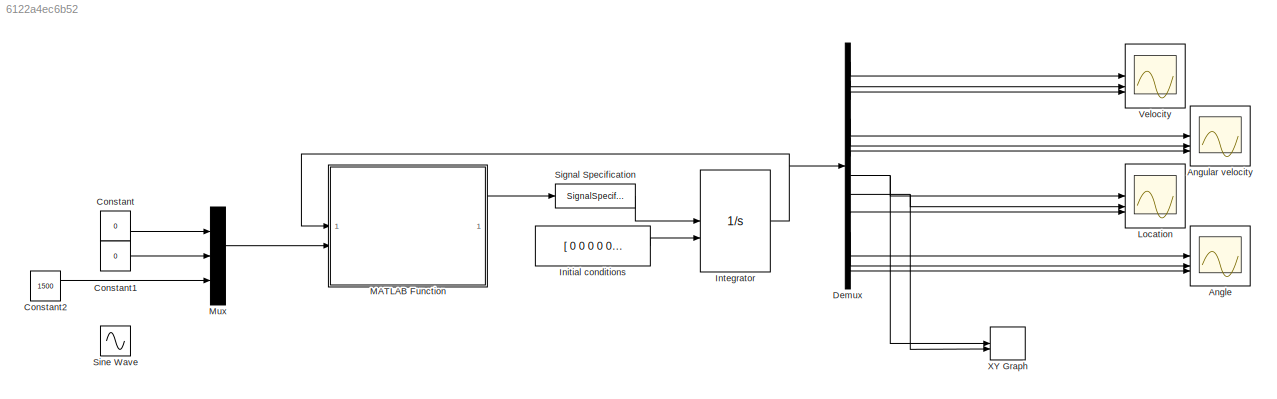
MODEL slx_6122a4ec6b52
KIND model
CONFIG AbsTol = auto
CONFIG EnableMultiTasking = off
CONFIG FixedStep = auto
CONFIG MaxStep = auto
CONFIG MinStep = auto
CONFIG RelTol = 1e-3
CONFIG SampleTimeConstraint = Unconstrained
CONFIG SolverName = VariableStepAuto
CONFIG StartTime = 0.0
CONFIG StopTime = 10.0
BLOCK [Scope] Angle
  Floating = off
  NumInputPorts = 3
  ScopeSpecificationString = Simulink.scopes.TimeScopeBlockCfg('CurrentConfiguration', extmgr.ConfigurationSet(extmgr.Configuration('Core','General UI',true),extmgr.Configuration('Core','Source UI',true),extmgr.Configuration('Sources','WiredSimulink',true,'DataLoggingVariableName','ScopeData2'),extmgr.Configuration('Visuals','Time Domain',true,'SerializedDisplays',{struct('MinYLimReal','-0.37672','MaxYLimReal','2.19248','YLab...<+1507ch>
BLOCK [Scope] Angular velocity
  Floating = off
  NumInputPorts = 3
  ScopeSpecificationString = Simulink.scopes.TimeScopeBlockCfg('CurrentConfiguration', extmgr.ConfigurationSet(extmgr.Configuration('Core','General UI',true),extmgr.Configuration('Core','Source UI',true),extmgr.Configuration('Sources','WiredSimulink',true,'DataLoggingVariableName','ScopeData1'),extmgr.Configuration('Visuals','Time Domain',true,'SerializedDisplays',{struct('MinYLimReal','-0.11543','MaxYLimReal','0.32933','YLab...<+1507ch>
BLOCK [Constant] Constant
  Value = 0
BLOCK [Constant] Constant1
  Value = 0
BLOCK [Constant] Constant2
  Value = 1500
BLOCK [Demux] Demux
  Outputs = 12
BLOCK [Constant] Initial conditions
  Value = [ 0 0 0 0 0 0 0 0  0 0 0 0]
BLOCK [Integrator] Integrator
  InitialCondition = zeros(1,12)'
  InitialConditionSource = external
BLOCK [Scope] Location
  Floating = off
  NumInputPorts = 3
  ScopeSpecificationString = Simulink.scopes.TimeScopeBlockCfg('CurrentConfiguration', extmgr.ConfigurationSet(extmgr.Configuration('Core','General UI',true),extmgr.Configuration('Core','Source UI',true),extmgr.Configuration('Sources','WiredSimulink',true,'DataLoggingVariableName','ScopeData1'),extmgr.Configuration('Visuals','Time Domain',true,'SerializedDisplays',{struct('MinYLimReal','-3.25563','MaxYLimReal','26.2574','YLab...<+1500ch>
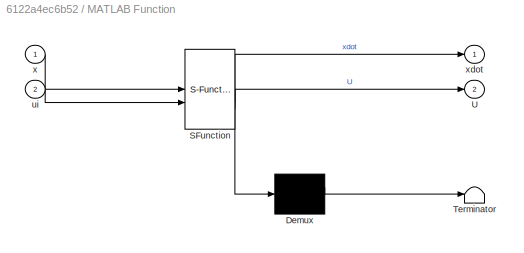
BLOCK [SubSystem] MATLAB Function
  ErrorFcn = Stateflow.Translate.translate
  PermitHierarchicalResolution = ExplicitOnly
  SFBlockType = MATLAB Function
  TreatAsAtomicUnit = on
BLOCK [Demux] MATLAB Function/ Demux 
  Outputs = 1
BLOCK [S-Function] MATLAB Function/ SFunction 
  EnableBusSupport = on
  FunctionName = sf_sfun
  PortCounts = [2 3]
  SFcnIsStateOwnerBlock = off
  SFunctionDeploymentMode = off
  Tag = Stateflow S-Function 2
BLOCK [Terminator] MATLAB Function/ Terminator 
BLOCK [Outport] MATLAB Function/U
  Port = 2
BLOCK [Inport] MATLAB Function/ui
  Port = 2
BLOCK [Inport] MATLAB Function/x
BLOCK [Outport] MATLAB Function/xdot
BLOCK [Mux] Mux
  DisplayOption = bar
  Inputs = 3
BLOCK [SignalSpecification] Signal Specification
  Dimensions = [12]
BLOCK [Sin] Sine Wave
  Amplitude = 1500
  SampleTime = 0
BLOCK [Scope] Velocity
  Floating = off
  NumInputPorts = 3
  ScopeSpecificationString = Simulink.scopes.TimeScopeBlockCfg('CurrentConfiguration', extmgr.ConfigurationSet(extmgr.Configuration('Core','General UI',true),extmgr.Configuration('Core','Source UI',true),extmgr.Configuration('Sources','WiredSimulink',true,'DataLoggingVariableName','ScopeData1'),extmgr.Configuration('Visuals','Time Domain',true,'SerializedDisplays',{struct('MinYLimReal','-0.34936','MaxYLimReal','2.8296','YLabe...<+1496ch>
BLOCK [Record] XY Graph
  CompatibilityTag = XY
  FileSettingsInternal = {"entries":[{"content":{"excelSettings":{"content":{},"type":"Streamout.ExcelSettings"}},"type":"Streamout.FileSettingStorage","uuid":""}],"packageUris":["http:\/\/schema.mathworks.com\/mf0\/streamout_blocks\/R2020a"],"version":"1.0"}
  Layout = [1 1]
  SignalsInternal = {"entries":[{"content":{"signals":[{"content":{"blockPath":[],"dimensions":[1],"domain":"","lineColor":"#a2142f","plots":[1],"port":1,"sid":[""],"signalID":111,"signalName":"Demux:7"},"type":"RecordBlkView.Signal","uuid":""},{"content":{"blockPath":[],"dimensions":[1],"domain":"","lineColor":"#139fff","plots":[1],"port":2,"sid":[""],"signalID":115,"signalName":"Demux:8"},"type":"RecordBlkView.Sign...<+315ch>
  VisualizationBindings = {"xyplotplugin":{"info":[{"series":[{"bindingParametersList":[{"parameter":"X-Axis","signalID":111,"signalName":"Demux:7"},{"parameter":"Y-Axis","signalID":115,"signalName":"Demux:8"}],"seriesID":60621}],"subplotID":1}]}}
LINE Constant1:1 -> Mux:2
LINE Constant2:1 -> Mux:3
LINE Constant:1 -> Mux:1
LINE Demux:1 -> Velocity:1
LINE Demux:10 -> Angle:1
LINE Demux:11 -> Angle:2
LINE Demux:12 -> Angle:3
LINE Demux:2 -> Velocity:2
LINE Demux:3 -> Velocity:3
LINE Demux:4 -> Angular velocity:1
LINE Demux:5 -> Angular velocity:2
LINE Demux:6 -> Angular velocity:3
NET Demux:7 -> Location:1, XY Graph:1
NET Demux:8 -> Location:2, XY Graph:2
LINE Demux:9 -> Location:3
LINE Initial conditions:1 -> Integrator:2
NET Integrator:1 -> Demux:1, MATLAB Function:1
LINE MATLAB Function:1 -> Signal Specification:1
LINE Mux:1 -> MATLAB Function:2
LINE Signal Specification:1 -> Integrator:1
note: NET lines group one-source signal fan-out (src -> all destinations, sorted); 1:1 wires keep LINE
CHART MATLAB Function states=1 transitions=1
  STATE_LABEL 'eML_blk_kernel()'
  STATE_LABEL 'SCRIPT:\nfunction [xdot,U] = fcn(x,ui)\n\n[xdot,U] = main_Modular(x,ui);\n'
CHART  states=0 transitions=0
